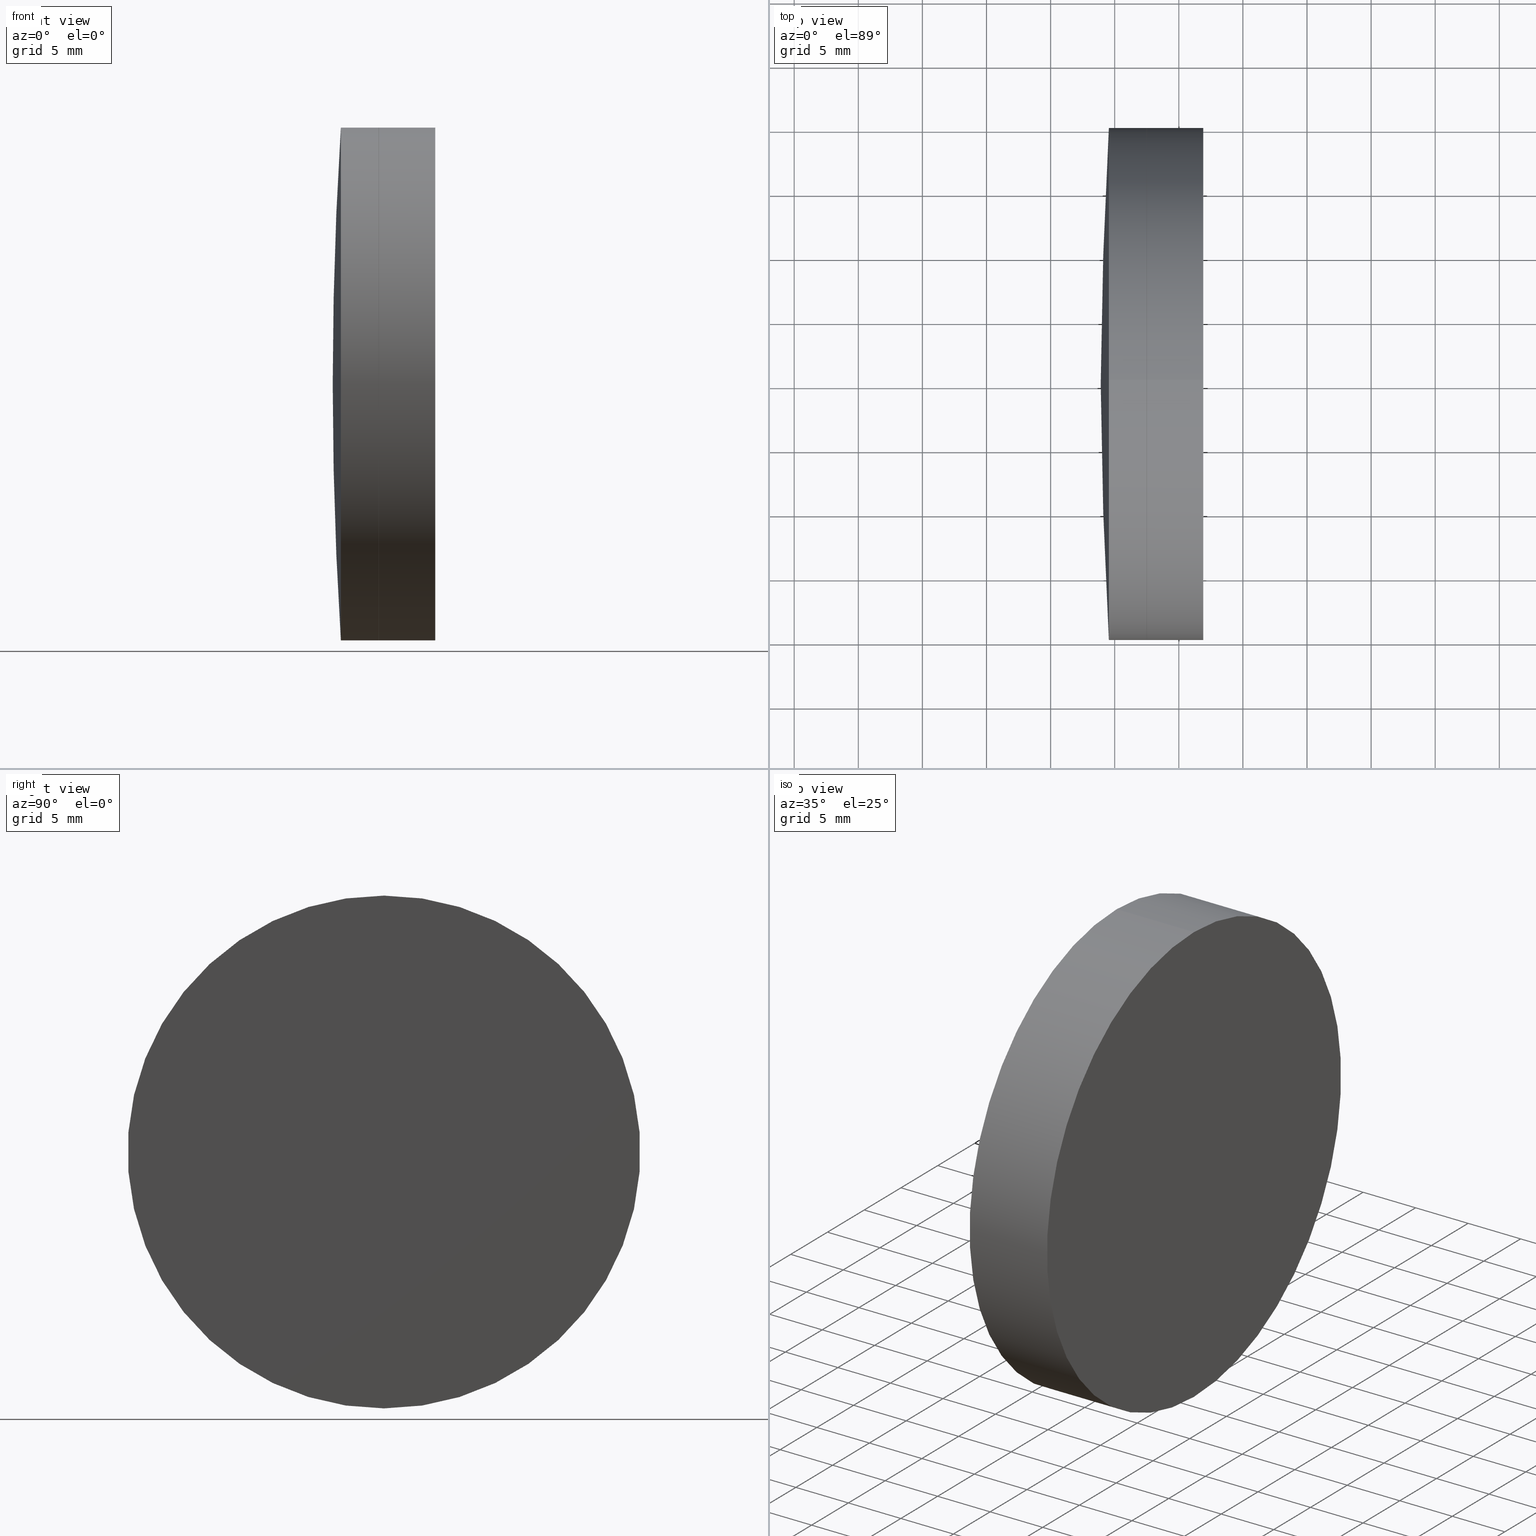
[diagram: canonical four-view strip — front | top / right | iso, engineering-drawing reading convention]
A machine part, canonical four-view strip (front | top / right | iso — engineering-drawing reading convention). The complete STEP part file that produces these views, byte-faithful:
ISO-10303-21;
HEADER;
FILE_DESCRIPTION (( 'STEP AP214' ),
    '1' );
FILE_NAME ('145078.STEP',
    '2019-05-16T02:05:39',
    ( 'user' ),
    ( '΢���й�' ),
    'SwSTEP 2.0',
    'SolidWorks 2016',
    '' );
FILE_SCHEMA (( 'AUTOMOTIVE_DESIGN' ));
ENDSEC;

DATA;
#1 = CIRCLE ( 'NONE', #215, 506.6900000000000000 ) ;
#2 = LINE ( 'NONE', #231, #249 ) ;
#3 = EDGE_CURVE ( 'NONE', #164, #226, #185, .T. ) ;
#4 = PRESENTATION_STYLE_ASSIGNMENT (( #19 ) ) ;
#5 = PRODUCT ( '145078', '145078', '', ( #258 ) ) ;
#6 = FILL_AREA_STYLE ('',( #58 ) ) ;
#7 =( GEOMETRIC_REPRESENTATION_CONTEXT ( 3 ) GLOBAL_UNCERTAINTY_ASSIGNED_CONTEXT ( ( #235 ) ) GLOBAL_UNIT_ASSIGNED_CONTEXT ( ( #176, #208, #107 ) ) REPRESENTATION_CONTEXT ( 'NONE', 'WORKASPACE' ) );
#8 =( NAMED_UNIT ( * ) PLANE_ANGLE_UNIT ( ) SI_UNIT ( $, .RADIAN. ) );
#9 = CLOSED_SHELL ( 'NONE', ( #182, #15, #136, #211, #287 ) ) ;
#10 = VECTOR ( 'NONE', #281, 1000.000000000000000 ) ;
#11 = DIRECTION ( 'NONE',  ( -1.000000000000000000, -0.0000000000000000000, -0.0000000000000000000 ) ) ;
#12 = CIRCLE ( 'NONE', #229, 20.00000000000019500 ) ;
#13 = DIRECTION ( 'NONE',  ( 0.0000000000000000000, 0.0000000000000000000, 1.000000000000000000 ) ) ;
#14 = AXIS2_PLACEMENT_3D ( 'NONE', #284, #108, #310 ) ;
#15 = ADVANCED_FACE ( 'NONE', ( #210 ), #253, .F. ) ;
#16 = ORIENTED_EDGE ( 'NONE', *, *, #130, .F. ) ;
#17 = SURFACE_SIDE_STYLE ('',( #62 ) ) ;
#18 = CIRCLE ( 'NONE', #55, 20.00000000000019500 ) ;
#19 = SURFACE_STYLE_USAGE ( .BOTH. , #34 ) ;
#20 = DIRECTION ( 'NONE',  ( 0.0000000000000000000, -1.000000000000000000, 0.0000000000000000000 ) ) ;
#21 = DIRECTION ( 'NONE',  ( 0.0000000000000000000, 0.0000000000000000000, 1.000000000000000000 ) ) ;
#22 = ORIENTED_EDGE ( 'NONE', *, *, #88, .T. ) ;
#23 = DIRECTION ( 'NONE',  ( -1.000000000000000000, -0.0000000000000000000, -0.0000000000000000000 ) ) ;
#24 = DIRECTION ( 'NONE',  ( 0.0000000000000000000, 0.0000000000000000000, 1.000000000000000000 ) ) ;
#25 = AXIS2_PLACEMENT_3D ( 'NONE', #239, #57, #81 ) ;
#26 = DIRECTION ( 'NONE',  ( -0.0000000000000000000, 1.000000000000000000, 1.224646799147353200E-016 ) ) ;
#27 = ORIENTED_EDGE ( 'NONE', *, *, #268, .F. ) ;
#28 = EDGE_CURVE ( 'NONE', #226, #96, #271, .T. ) ;
#29 = AXIS2_PLACEMENT_3D ( 'NONE', #260, #189, #155 ) ;
#30 = ORIENTED_EDGE ( 'NONE', *, *, #126, .T. ) ;
#31 = CYLINDRICAL_SURFACE ( 'NONE', #77, 20.00000000000019500 ) ;
#32 = AXIS2_PLACEMENT_3D ( 'NONE', #109, #234, #115 ) ;
#33 = ADVANCED_BREP_SHAPE_REPRESENTATION ( '145078', ( #188, #197, #314 ), #102 ) ;
#34 = SURFACE_SIDE_STYLE ('',( #194 ) ) ;
#35 = EDGE_LOOP ( 'NONE', ( #16, #321, #247, #146 ) ) ;
#36 = ORIENTED_EDGE ( 'NONE', *, *, #268, .T. ) ;
#37 = SPHERICAL_SURFACE ( 'NONE', #97, 506.6900000000000000 ) ;
#38 = ORIENTED_EDGE ( 'NONE', *, *, #94, .F. ) ;
#39 = ADVANCED_FACE ( 'NONE', ( #283 ), #193, .T. ) ;
#40 = APPLICATION_PROTOCOL_DEFINITION ( 'draft international standard', 'automotive_design', 1998, #54 ) ;
#41 = SURFACE_STYLE_USAGE ( .BOTH. , #17 ) ;
#42 = CIRCLE ( 'NONE', #104, 20.00000000000019500 ) ;
#43 =( GEOMETRIC_REPRESENTATION_CONTEXT ( 3 ) GLOBAL_UNCERTAINTY_ASSIGNED_CONTEXT ( ( #144 ) ) GLOBAL_UNIT_ASSIGNED_CONTEXT ( ( #228, #8, #279 ) ) REPRESENTATION_CONTEXT ( 'NONE', 'WORKASPACE' ) );
#44 = DIRECTION ( 'NONE',  ( 0.0000000000000000000, 1.000000000000000000, 0.0000000000000000000 ) ) ;
#45 = EDGE_LOOP ( 'NONE', ( #245, #119, #190 ) ) ;
#46 = EDGE_CURVE ( 'NONE', #204, #99, #320, .T. ) ;
#47 = EDGE_LOOP ( 'NONE', ( #124, #30, #223 ) ) ;
#48 = CIRCLE ( 'NONE', #300, 506.6900000000000000 ) ;
#49 = DIRECTION ( 'NONE',  ( 0.0000000000000000000, 0.0000000000000000000, 1.000000000000000000 ) ) ;
#50 = EDGE_LOOP ( 'NONE', ( #159, #269, #241 ) ) ;
#51 = DIRECTION ( 'NONE',  ( -0.0000000000000000000, 1.000000000000000000, 1.224646799147353200E-016 ) ) ;
#52 = EDGE_CURVE ( 'NONE', #96, #226, #56, .T. ) ;
#53 = CARTESIAN_POINT ( 'NONE',  ( -0.5519199926577972300, 0.0000000000000000000, 20.00000000000019500 ) ) ;
#54 = APPLICATION_CONTEXT ( 'automotive_design' ) ;
#55 = AXIS2_PLACEMENT_3D ( 'NONE', #203, #230, #74 ) ;
#56 = CIRCLE ( 'NONE', #318, 19.99999999999986100 ) ;
#57 = DIRECTION ( 'NONE',  ( -1.000000000000000000, -0.0000000000000000000, -0.0000000000000000000 ) ) ;
#58 = FILL_AREA_STYLE_COLOUR ( '', #202 ) ;
#59 = DIRECTION ( 'NONE',  ( -1.000000000000000000, -0.0000000000000000000, -0.0000000000000000000 ) ) ;
#60 = CARTESIAN_POINT ( 'NONE',  ( 657.5142120742816600, 0.0000000000000000000, 19.99999999999986500 ) ) ;
#61 =( NAMED_UNIT ( * ) SI_UNIT ( $, .STERADIAN. ) SOLID_ANGLE_UNIT ( ) );
#62 = SURFACE_STYLE_FILL_AREA ( #117 ) ;
#63 = EDGE_CURVE ( 'NONE', #99, #96, #2, .T. ) ;
#64 = PRODUCT_DEFINITION_SHAPE ( 'NONE', 'NONE',  #156 ) ;
#65 = AXIS2_PLACEMENT_3D ( 'NONE', #80, #178, #13 ) ;
#66 = EDGE_LOOP ( 'NONE', ( #165, #168, #157, #201 ) ) ;
#67 = VERTEX_POINT ( 'NONE', #315 ) ;
#68 = ORIENTED_EDGE ( 'NONE', *, *, #52, .F. ) ;
#69 = FACE_OUTER_BOUND ( 'NONE', #266, .T. ) ;
#70 = STYLED_ITEM ( 'NONE', ( #4 ), #33 ) ;
#71 = SPHERICAL_SURFACE ( 'NONE', #29, 506.6900000000000000 ) ;
#72 = ORIENTED_EDGE ( 'NONE', *, *, #52, .T. ) ;
#73 = CIRCLE ( 'NONE', #65, 19.99999999999986500 ) ;
#74 = DIRECTION ( 'NONE',  ( 0.0000000000000000000, 0.0000000000000000000, 1.000000000000000000 ) ) ;
#75 = CARTESIAN_POINT ( 'NONE',  ( 654.5442827078192100, 0.0000000000000000000, 0.0000000000000000000 ) ) ;
#76 = CARTESIAN_POINT ( 'NONE',  ( 0.0000000000000000000, 0.0000000000000000000, 0.0000000000000000000 ) ) ;
#77 = AXIS2_PLACEMENT_3D ( 'NONE', #110, #154, #316 ) ;
#78 = FACE_OUTER_BOUND ( 'NONE', #50, .T. ) ;
#79 = ORIENTED_EDGE ( 'NONE', *, *, #94, .T. ) ;
#80 = CARTESIAN_POINT ( 'NONE',  ( 657.5142120742816600, 0.0000000000000000000, 0.0000000000000000000 ) ) ;
#81 = DIRECTION ( 'NONE',  ( 0.0000000000000000000, 0.0000000000000000000, 1.000000000000000000 ) ) ;
#82 = ADVANCED_FACE ( 'NONE', ( #312 ), #100, .T. ) ;
#83 = UNCERTAINTY_MEASURE_WITH_UNIT (LENGTH_MEASURE( 1.000000000000000100E-005 ), #277, 'distance_accuracy_value', 'NONE');
#84 = FILL_AREA_STYLE_COLOUR ( '', #225 ) ;
#85 = DIRECTION ( 'NONE',  ( 0.0000000000000000000, 0.0000000000000000000, 1.000000000000000000 ) ) ;
#86 = CARTESIAN_POINT ( 'NONE',  ( 151.2190846041469300, 0.0000000000000000000, -1.344597157034381000E-013 ) ) ;
#87 = AXIS2_PLACEMENT_3D ( 'NONE', #303, #129, #103 ) ;
#88 = EDGE_CURVE ( 'NONE', #96, #153, #171, .T. ) ;
#89 = DIRECTION ( 'NONE',  ( 0.0000000000000000000, 0.0000000000000000000, -1.000000000000000000 ) ) ;
#90 = CARTESIAN_POINT ( 'NONE',  ( 657.5142120742816600, 2.449293598294727800E-015, -20.00000000000030900 ) ) ;
#91 = DIRECTION ( 'NONE',  ( -1.000000000000000000, -0.0000000000000000000, -0.0000000000000000000 ) ) ;
#92 = DIRECTION ( 'NONE',  ( -1.000000000000000000, -0.0000000000000000000, -0.0000000000000000000 ) ) ;
#93 = PRODUCT_DEFINITION_CONTEXT ( 'detailed design', #305, 'design' ) ;
#94 = EDGE_CURVE ( 'NONE', #226, #153, #123, .T. ) ;
#95 = STYLED_ITEM ( 'NONE', ( #169 ), #188 ) ;
#96 = VERTEX_POINT ( 'NONE', #307 ) ;
#97 = AXIS2_PLACEMENT_3D ( 'NONE', #177, #44, #21 ) ;
#98 = FILL_AREA_STYLE ('',( #139 ) ) ;
#99 = VERTEX_POINT ( 'NONE', #265 ) ;
#100 = CYLINDRICAL_SURFACE ( 'NONE', #32, 19.99999999999986500 ) ;
#101 = CARTESIAN_POINT ( 'NONE',  ( -0.5519199926577972300, 0.0000000000000000000, 0.0000000000000000000 ) ) ;
#102 =( GEOMETRIC_REPRESENTATION_CONTEXT ( 3 ) GLOBAL_UNCERTAINTY_ASSIGNED_CONTEXT ( ( #83 ) ) GLOBAL_UNIT_ASSIGNED_CONTEXT ( ( #277, #181, #289 ) ) REPRESENTATION_CONTEXT ( 'NONE', 'WORKASPACE' ) );
#103 = DIRECTION ( 'NONE',  ( -0.0000000000000000000, 0.0000000000000000000, 1.000000000000000000 ) ) ;
#104 = AXIS2_PLACEMENT_3D ( 'NONE', #219, #92, #301 ) ;
#105 = EDGE_LOOP ( 'NONE', ( #128, #22, #38 ) ) ;
#106 = CARTESIAN_POINT ( 'NONE',  ( 151.2190846041469300, 0.0000000000000000000, -1.344597157034381000E-013 ) ) ;
#107 =( NAMED_UNIT ( * ) SI_UNIT ( $, .STERADIAN. ) SOLID_ANGLE_UNIT ( ) );
#108 = DIRECTION ( 'NONE',  ( 0.0000000000000000000, 1.000000000000000000, 0.0000000000000000000 ) ) ;
#109 = CARTESIAN_POINT ( 'NONE',  ( 124.5233095260452400, 0.0000000000000000000, 0.0000000000000000000 ) ) ;
#110 = CARTESIAN_POINT ( 'NONE',  ( -0.5519199926577972300, 0.0000000000000000000, 0.0000000000000000000 ) ) ;
#111 = ADVANCED_FACE ( 'NONE', ( #206 ), #218, .T. ) ;
#112 = DIRECTION ( 'NONE',  ( -1.000000000000000000, -0.0000000000000000000, -0.0000000000000000000 ) ) ;
#113 = CARTESIAN_POINT ( 'NONE',  ( 661.9090846041468700, 0.0000000000000000000, 20.00000000000019500 ) ) ;
#114 = PRESENTATION_LAYER_ASSIGNMENT (  '', '', ( #125 ) ) ;
#115 = DIRECTION ( 'NONE',  ( 0.0000000000000000000, 0.0000000000000000000, 1.000000000000000000 ) ) ;
#116 = LINE ( 'NONE', #53, #275 ) ;
#117 = FILL_AREA_STYLE ('',( #84 ) ) ;
#118 = CARTESIAN_POINT ( 'NONE',  ( 124.5233095260452400, 0.0000000000000000000, 0.0000000000000000000 ) ) ;
#119 = ORIENTED_EDGE ( 'NONE', *, *, #205, .T. ) ;
#120 = EDGE_CURVE ( 'NONE', #184, #290, #116, .T. ) ;
#121 = AXIS2_PLACEMENT_3D ( 'NONE', #118, #59, #175 ) ;
#122 = FACE_OUTER_BOUND ( 'NONE', #35, .T. ) ;
#123 = CIRCLE ( 'NONE', #299, 315.1800000000000600 ) ;
#124 = ORIENTED_EDGE ( 'NONE', *, *, #46, .F. ) ;
#125 = STYLED_ITEM ( 'NONE', ( #296 ), #197 ) ;
#126 = EDGE_CURVE ( 'NONE', #204, #164, #48, .T. ) ;
#127 = PRODUCT_RELATED_PRODUCT_CATEGORY ( 'part', '', ( #5 ) ) ;
#128 = ORIENTED_EDGE ( 'NONE', *, *, #28, .T. ) ;
#129 = DIRECTION ( 'NONE',  ( -1.000000000000000000, 0.0000000000000000000, -0.0000000000000000000 ) ) ;
#130 = EDGE_CURVE ( 'NONE', #67, #198, #291, .T. ) ;
#131 = DIRECTION ( 'NONE',  ( 0.0000000000000000000, 0.0000000000000000000, -1.000000000000000000 ) ) ;
#132 = CARTESIAN_POINT ( 'NONE',  ( -0.5519199926577972300, 2.449293598294730200E-015, -20.00000000000019500 ) ) ;
#133 = DIRECTION ( 'NONE',  ( 1.000000000000000000, 0.0000000000000000000, 0.0000000000000000000 ) ) ;
#134 = ORIENTED_EDGE ( 'NONE', *, *, #174, .F. ) ;
#135 = DIRECTION ( 'NONE',  ( 0.0000000000000000000, 1.000000000000000000, 0.0000000000000000000 ) ) ;
#136 = ADVANCED_FACE ( 'NONE', ( #78 ), #37, .F. ) ;
#137 = SURFACE_SIDE_STYLE ('',( #224 ) ) ;
#138 = CLOSED_SHELL ( 'NONE', ( #309, #82, #237, #39, #111, #259 ) ) ;
#139 = FILL_AREA_STYLE_COLOUR ( '', #149 ) ;
#140 = DIRECTION ( 'NONE',  ( 0.0000000000000000000, 0.0000000000000000000, 1.000000000000000000 ) ) ;
#141 = CARTESIAN_POINT ( 'NONE',  ( 657.9090846041468700, 0.0000000000000000000, -1.034339013704394600E-013 ) ) ;
#142 = AXIS2_PLACEMENT_3D ( 'NONE', #214, #236, #240 ) ;
#143 = FACE_OUTER_BOUND ( 'NONE', #195, .T. ) ;
#144 = UNCERTAINTY_MEASURE_WITH_UNIT (LENGTH_MEASURE( 1.000000000000000100E-005 ), #228, 'distance_accuracy_value', 'NONE');
#145 = CYLINDRICAL_SURFACE ( 'NONE', #238, 20.00000000000019500 ) ;
#146 = ORIENTED_EDGE ( 'NONE', *, *, #167, .F. ) ;
#147 = EDGE_CURVE ( 'NONE', #99, #164, #248, .T. ) ;
#148 = PRESENTATION_LAYER_ASSIGNMENT (  '', '', ( #70 ) ) ;
#149 = COLOUR_RGB ( '',1.000000000000000000, 1.000000000000000000, 1.000000000000000000 ) ;
#150 = EDGE_LOOP ( 'NONE', ( #27, #304 ) ) ;
#151 = CARTESIAN_POINT ( 'NONE',  ( 661.9090846041468700, 0.0000000000000000000, 0.0000000000000000000 ) ) ;
#152 = SHAPE_DEFINITION_REPRESENTATION ( #64, #33 ) ;
#153 = VERTEX_POINT ( 'NONE', #209 ) ;
#154 = DIRECTION ( 'NONE',  ( -1.000000000000000000, -0.0000000000000000000, -0.0000000000000000000 ) ) ;
#155 = DIRECTION ( 'NONE',  ( 0.0000000000000000000, 0.0000000000000000000, 1.000000000000000000 ) ) ;
#156 = PRODUCT_DEFINITION ( 'δ֪', '', #295, #93 ) ;
#157 = ORIENTED_EDGE ( 'NONE', *, *, #28, .F. ) ;
#158 = CARTESIAN_POINT ( 'NONE',  ( 657.5142120742816600, 0.0000000000000000000, 0.0000000000000000000 ) ) ;
#159 = ORIENTED_EDGE ( 'NONE', *, *, #205, .F. ) ;
#160 = CARTESIAN_POINT ( 'NONE',  ( 657.5142120742816600, 0.0000000000000000000, 0.0000000000000000000 ) ) ;
#161 = AXIS2_PLACEMENT_3D ( 'NONE', #86, #135, #263 ) ;
#162 = PRESENTATION_LAYER_ASSIGNMENT (  '', '', ( #95 ) ) ;
#163 = ORIENTED_EDGE ( 'NONE', *, *, #88, .F. ) ;
#164 = VERTEX_POINT ( 'NONE', #60 ) ;
#165 = ORIENTED_EDGE ( 'NONE', *, *, #174, .T. ) ;
#166 = ORIENTED_EDGE ( 'NONE', *, *, #147, .T. ) ;
#167 = EDGE_CURVE ( 'NONE', #198, #290, #42, .T. ) ;
#168 = ORIENTED_EDGE ( 'NONE', *, *, #63, .T. ) ;
#169 = PRESENTATION_STYLE_ASSIGNMENT (( #285 ) ) ;
#170 = MECHANICAL_DESIGN_GEOMETRIC_PRESENTATION_REPRESENTATION (  '', ( #125 ), #43 ) ;
#171 = CIRCLE ( 'NONE', #252, 315.1800000000000600 ) ;
#172 = DIRECTION ( 'NONE',  ( 0.0000000000000000000, 0.0000000000000000000, 1.000000000000000000 ) ) ;
#173 = ORIENTED_EDGE ( 'NONE', *, *, #3, .T. ) ;
#174 = EDGE_CURVE ( 'NONE', #164, #99, #73, .T. ) ;
#175 = DIRECTION ( 'NONE',  ( 0.0000000000000000000, 0.0000000000000000000, 1.000000000000000000 ) ) ;
#176 =( LENGTH_UNIT ( ) NAMED_UNIT ( * ) SI_UNIT ( .MILLI., .METRE. ) );
#177 = CARTESIAN_POINT ( 'NONE',  ( 151.2190846041469300, 0.0000000000000000000, -1.344597157034381000E-013 ) ) ;
#178 = DIRECTION ( 'NONE',  ( -1.000000000000000000, -0.0000000000000000000, -0.0000000000000000000 ) ) ;
#179 = MECHANICAL_DESIGN_GEOMETRIC_PRESENTATION_REPRESENTATION (  '', ( #95 ), #246 ) ;
#180 = DIRECTION ( 'NONE',  ( 0.0000000000000000000, -1.224646799147353200E-016, 1.000000000000000000 ) ) ;
#181 =( NAMED_UNIT ( * ) PLANE_ANGLE_UNIT ( ) SI_UNIT ( $, .RADIAN. ) );
#182 = ADVANCED_FACE ( 'NONE', ( #69 ), #31, .T. ) ;
#183 = DIRECTION ( 'NONE',  ( -1.000000000000000000, -0.0000000000000000000, -0.0000000000000000000 ) ) ;
#184 = VERTEX_POINT ( 'NONE', #113 ) ;
#185 = LINE ( 'NONE', #261, #221 ) ;
#186 = CARTESIAN_POINT ( 'NONE',  ( 151.2190846041469300, 0.0000000000000000000, -1.344597157034381000E-013 ) ) ;
#187 = DIRECTION ( 'NONE',  ( -0.0000000000000000000, 1.000000000000000000, 1.224646799147353200E-016 ) ) ;
#188 = MANIFOLD_SOLID_BREP ( '��ת1', #138 ) ;
#189 = DIRECTION ( 'NONE',  ( 0.0000000000000000000, 1.000000000000000000, 0.0000000000000000000 ) ) ;
#190 = ORIENTED_EDGE ( 'NONE', *, *, #167, .T. ) ;
#191 = DIRECTION ( 'NONE',  ( -1.000000000000000000, -0.0000000000000000000, -0.0000000000000000000 ) ) ;
#192 = CARTESIAN_POINT ( 'NONE',  ( 151.2190846041469300, 0.0000000000000000000, -1.344597157034381000E-013 ) ) ;
#193 = SPHERICAL_SURFACE ( 'NONE', #14, 315.1800000000000600 ) ;
#194 = SURFACE_STYLE_FILL_AREA ( #6 ) ;
#195 = EDGE_LOOP ( 'NONE', ( #274, #217, #134 ) ) ;
#196 = EDGE_CURVE ( 'NONE', #290, #198, #12, .T. ) ;
#197 = MANIFOLD_SOLID_BREP ( '��ת3', #9 ) ;
#198 = VERTEX_POINT ( 'NONE', #90 ) ;
#199 = AXIS2_PLACEMENT_3D ( 'NONE', #151, #11, #172 ) ;
#200 = FACE_OUTER_BOUND ( 'NONE', #105, .T. ) ;
#201 = ORIENTED_EDGE ( 'NONE', *, *, #3, .F. ) ;
#202 = COLOUR_RGB ( '',1.000000000000000000, 1.000000000000000000, 1.000000000000000000 ) ;
#203 = CARTESIAN_POINT ( 'NONE',  ( 661.9090846041468700, 0.0000000000000000000, 0.0000000000000000000 ) ) ;
#204 = VERTEX_POINT ( 'NONE', #292 ) ;
#205 = EDGE_CURVE ( 'NONE', #251, #198, #1, .T. ) ;
#206 = FACE_OUTER_BOUND ( 'NONE', #294, .T. ) ;
#207 = CIRCLE ( 'NONE', #199, 20.00000000000019500 ) ;
#208 =( NAMED_UNIT ( * ) PLANE_ANGLE_UNIT ( ) SI_UNIT ( $, .RADIAN. ) );
#209 = CARTESIAN_POINT ( 'NONE',  ( 653.9090846041468700, 0.0000000000000000000, -1.165465373686866100E-013 ) ) ;
#210 = FACE_OUTER_BOUND ( 'NONE', #45, .T. ) ;
#211 = ADVANCED_FACE ( 'NONE', ( #122 ), #145, .T. ) ;
#212 = FACE_OUTER_BOUND ( 'NONE', #47, .T. ) ;
#213 = DIRECTION ( 'NONE',  ( -1.000000000000000000, -0.0000000000000000000, -0.0000000000000000000 ) ) ;
#214 = CARTESIAN_POINT ( 'NONE',  ( 151.2190846041469300, 0.0000000000000000000, -1.344597157034381000E-013 ) ) ;
#215 = AXIS2_PLACEMENT_3D ( 'NONE', #192, #26, #276 ) ;
#216 = CARTESIAN_POINT ( 'NONE',  ( 969.0890846041469300, 0.0000000000000000000, -1.358457462764497500E-013 ) ) ;
#217 = ORIENTED_EDGE ( 'NONE', *, *, #46, .T. ) ;
#218 = CYLINDRICAL_SURFACE ( 'NONE', #121, 19.99999999999986500 ) ;
#219 = CARTESIAN_POINT ( 'NONE',  ( 657.5142120742816600, 0.0000000000000000000, 0.0000000000000000000 ) ) ;
#220 = SPHERICAL_SURFACE ( 'NONE', #306, 506.6900000000000000 ) ;
#221 = VECTOR ( 'NONE', #112, 1000.000000000000000 ) ;
#222 = AXIS2_PLACEMENT_3D ( 'NONE', #257, #262, #311 ) ;
#223 = ORIENTED_EDGE ( 'NONE', *, *, #147, .F. ) ;
#224 = SURFACE_STYLE_FILL_AREA ( #98 ) ;
#225 = COLOUR_RGB ( '',1.000000000000000000, 1.000000000000000000, 1.000000000000000000 ) ;
#226 = VERTEX_POINT ( 'NONE', #308 ) ;
#227 = UNCERTAINTY_MEASURE_WITH_UNIT (LENGTH_MEASURE( 1.000000000000000100E-005 ), #288, 'distance_accuracy_value', 'NONE');
#228 =( LENGTH_UNIT ( ) NAMED_UNIT ( * ) SI_UNIT ( .MILLI., .METRE. ) );
#229 = AXIS2_PLACEMENT_3D ( 'NONE', #158, #23, #267 ) ;
#230 = DIRECTION ( 'NONE',  ( -1.000000000000000000, -0.0000000000000000000, -0.0000000000000000000 ) ) ;
#231 = CARTESIAN_POINT ( 'NONE',  ( 124.5233095260452400, 2.449293598294689900E-015, -19.99999999999986500 ) ) ;
#232 = APPLICATION_PROTOCOL_DEFINITION ( 'draft international standard', 'automotive_design', 1998, #305 ) ;
#233 = ORIENTED_EDGE ( 'NONE', *, *, #196, .F. ) ;
#234 = DIRECTION ( 'NONE',  ( -1.000000000000000000, -0.0000000000000000000, -0.0000000000000000000 ) ) ;
#235 = UNCERTAINTY_MEASURE_WITH_UNIT (LENGTH_MEASURE( 1.000000000000000100E-005 ), #176, 'distance_accuracy_value', 'NONE');
#236 = DIRECTION ( 'NONE',  ( 0.0000000000000000000, -1.000000000000000000, 0.0000000000000000000 ) ) ;
#237 = ADVANCED_FACE ( 'NONE', ( #200 ), #319, .T. ) ;
#238 = AXIS2_PLACEMENT_3D ( 'NONE', #101, #91, #49 ) ;
#239 = CARTESIAN_POINT ( 'NONE',  ( 654.5442827078192100, 0.0000000000000000000, 0.0000000000000000000 ) ) ;
#240 = DIRECTION ( 'NONE',  ( 0.0000000000000000000, 0.0000000000000000000, -1.000000000000000000 ) ) ;
#241 = ORIENTED_EDGE ( 'NONE', *, *, #196, .T. ) ;
#242 = CARTESIAN_POINT ( 'NONE',  ( 151.2190846041469300, 0.0000000000000000000, -1.344597157034381000E-013 ) ) ;
#243 = DIRECTION ( 'NONE',  ( 0.0000000000000000000, -1.000000000000000000, 0.0000000000000000000 ) ) ;
#244 =( NAMED_UNIT ( * ) PLANE_ANGLE_UNIT ( ) SI_UNIT ( $, .RADIAN. ) );
#245 = ORIENTED_EDGE ( 'NONE', *, *, #293, .F. ) ;
#246 =( GEOMETRIC_REPRESENTATION_CONTEXT ( 3 ) GLOBAL_UNCERTAINTY_ASSIGNED_CONTEXT ( ( #227 ) ) GLOBAL_UNIT_ASSIGNED_CONTEXT ( ( #288, #244, #61 ) ) REPRESENTATION_CONTEXT ( 'NONE', 'WORKASPACE' ) );
#247 = ORIENTED_EDGE ( 'NONE', *, *, #120, .T. ) ;
#248 = CIRCLE ( 'NONE', #250, 19.99999999999986500 ) ;
#249 = VECTOR ( 'NONE', #213, 1000.000000000000000 ) ;
#250 = AXIS2_PLACEMENT_3D ( 'NONE', #160, #191, #24 ) ;
#251 = VERTEX_POINT ( 'NONE', #141 ) ;
#252 = AXIS2_PLACEMENT_3D ( 'NONE', #264, #187, #256 ) ;
#253 = SPHERICAL_SURFACE ( 'NONE', #161, 506.6900000000000000 ) ;
#254 = CARTESIAN_POINT ( 'NONE',  ( 657.5142120742816600, 0.0000000000000000000, 20.00000000000017400 ) ) ;
#255 = DIRECTION ( 'NONE',  ( 0.0000000000000000000, 1.000000000000000000, 0.0000000000000000000 ) ) ;
#256 = DIRECTION ( 'NONE',  ( 0.0000000000000000000, -1.224646799147353200E-016, 1.000000000000000000 ) ) ;
#257 = CARTESIAN_POINT ( 'NONE',  ( 969.0890846041469300, 0.0000000000000000000, -1.358457462764497500E-013 ) ) ;
#258 = PRODUCT_CONTEXT ( 'NONE', #54, 'mechanical' ) ;
#259 = ADVANCED_FACE ( 'NONE', ( #212 ), #71, .T. ) ;
#260 = CARTESIAN_POINT ( 'NONE',  ( 151.2190846041469300, 0.0000000000000000000, -1.344597157034381000E-013 ) ) ;
#261 = CARTESIAN_POINT ( 'NONE',  ( 124.5233095260452400, 0.0000000000000000000, 19.99999999999986500 ) ) ;
#262 = DIRECTION ( 'NONE',  ( 0.0000000000000000000, 1.000000000000000000, 0.0000000000000000000 ) ) ;
#263 = DIRECTION ( 'NONE',  ( 0.0000000000000000000, 0.0000000000000000000, 1.000000000000000000 ) ) ;
#264 = CARTESIAN_POINT ( 'NONE',  ( 969.0890846041469300, 0.0000000000000000000, -1.358457462764497500E-013 ) ) ;
#265 = CARTESIAN_POINT ( 'NONE',  ( 657.5142120742816600, 2.449293598294689900E-015, -19.99999999999986500 ) ) ;
#266 = EDGE_LOOP ( 'NONE', ( #36, #297, #233, #317 ) ) ;
#267 = DIRECTION ( 'NONE',  ( 0.0000000000000000000, 0.0000000000000000000, 1.000000000000000000 ) ) ;
#268 = EDGE_CURVE ( 'NONE', #184, #67, #18, .T. ) ;
#269 = ORIENTED_EDGE ( 'NONE', *, *, #293, .T. ) ;
#270 = EDGE_LOOP ( 'NONE', ( #163, #72, #79 ) ) ;
#271 = CIRCLE ( 'NONE', #25, 19.99999999999986100 ) ;
#272 = EDGE_CURVE ( 'NONE', #67, #184, #207, .T. ) ;
#273 = FACE_OUTER_BOUND ( 'NONE', #150, .T. ) ;
#274 = ORIENTED_EDGE ( 'NONE', *, *, #126, .F. ) ;
#275 = VECTOR ( 'NONE', #183, 1000.000000000000000 ) ;
#276 = DIRECTION ( 'NONE',  ( 0.0000000000000000000, -1.224646799147353200E-016, 1.000000000000000000 ) ) ;
#277 =( LENGTH_UNIT ( ) NAMED_UNIT ( * ) SI_UNIT ( .MILLI., .METRE. ) );
#278 = CIRCLE ( 'NONE', #142, 506.6900000000000000 ) ;
#279 =( NAMED_UNIT ( * ) SI_UNIT ( $, .STERADIAN. ) SOLID_ANGLE_UNIT ( ) );
#280 = AXIS2_PLACEMENT_3D ( 'NONE', #242, #51, #180 ) ;
#281 = DIRECTION ( 'NONE',  ( -1.000000000000000000, -0.0000000000000000000, -0.0000000000000000000 ) ) ;
#282 = DIRECTION ( 'NONE',  ( 0.0000000000000000000, 0.0000000000000000000, 1.000000000000000000 ) ) ;
#283 = FACE_OUTER_BOUND ( 'NONE', #270, .T. ) ;
#284 = CARTESIAN_POINT ( 'NONE',  ( 969.0890846041469300, 0.0000000000000000000, -1.358457462764497500E-013 ) ) ;
#285 = SURFACE_STYLE_USAGE ( .BOTH. , #137 ) ;
#286 = MECHANICAL_DESIGN_GEOMETRIC_PRESENTATION_REPRESENTATION (  '', ( #70 ), #7 ) ;
#287 = ADVANCED_FACE ( 'NONE', ( #273 ), #302, .F. ) ;
#288 =( LENGTH_UNIT ( ) NAMED_UNIT ( * ) SI_UNIT ( .MILLI., .METRE. ) );
#289 =( NAMED_UNIT ( * ) SI_UNIT ( $, .STERADIAN. ) SOLID_ANGLE_UNIT ( ) );
#290 = VERTEX_POINT ( 'NONE', #254 ) ;
#291 = LINE ( 'NONE', #132, #10 ) ;
#292 = CARTESIAN_POINT ( 'NONE',  ( 657.9090846041468700, 0.0000000000000000000, -1.034339013704394600E-013 ) ) ;
#293 = EDGE_CURVE ( 'NONE', #251, #290, #278, .T. ) ;
#294 = EDGE_LOOP ( 'NONE', ( #298, #166, #173, #68 ) ) ;
#295 = PRODUCT_DEFINITION_FORMATION_WITH_SPECIFIED_SOURCE ( '�κ�', '', #5, .NOT_KNOWN. ) ;
#296 = PRESENTATION_STYLE_ASSIGNMENT (( #41 ) ) ;
#297 = ORIENTED_EDGE ( 'NONE', *, *, #130, .T. ) ;
#298 = ORIENTED_EDGE ( 'NONE', *, *, #63, .F. ) ;
#299 = AXIS2_PLACEMENT_3D ( 'NONE', #216, #243, #89 ) ;
#300 = AXIS2_PLACEMENT_3D ( 'NONE', #106, #20, #131 ) ;
#301 = DIRECTION ( 'NONE',  ( 0.0000000000000000000, 0.0000000000000000000, 1.000000000000000000 ) ) ;
#302 = PLANE ( 'NONE',  #87 ) ;
#303 = CARTESIAN_POINT ( 'NONE',  ( 661.9090846041468700, 0.0000000000000000000, 0.0000000000000000000 ) ) ;
#304 = ORIENTED_EDGE ( 'NONE', *, *, #272, .F. ) ;
#305 = APPLICATION_CONTEXT ( 'automotive_design' ) ;
#306 = AXIS2_PLACEMENT_3D ( 'NONE', #186, #255, #85 ) ;
#307 = CARTESIAN_POINT ( 'NONE',  ( 654.5442827078192100, 2.449293598294685600E-015, -19.99999999999996400 ) ) ;
#308 = CARTESIAN_POINT ( 'NONE',  ( 654.5442827078192100, 0.0000000000000000000, 19.99999999999982900 ) ) ;
#309 = ADVANCED_FACE ( 'NONE', ( #143 ), #220, .T. ) ;
#310 = DIRECTION ( 'NONE',  ( 0.0000000000000000000, 0.0000000000000000000, 1.000000000000000000 ) ) ;
#311 = DIRECTION ( 'NONE',  ( 0.0000000000000000000, 0.0000000000000000000, 1.000000000000000000 ) ) ;
#312 = FACE_OUTER_BOUND ( 'NONE', #66, .T. ) ;
#313 = DIRECTION ( 'NONE',  ( -1.000000000000000000, -0.0000000000000000000, -0.0000000000000000000 ) ) ;
#314 = AXIS2_PLACEMENT_3D ( 'NONE', #76, #282, #133 ) ;
#315 = CARTESIAN_POINT ( 'NONE',  ( 661.9090846041468700, 2.449293598294730200E-015, -20.00000000000019500 ) ) ;
#316 = DIRECTION ( 'NONE',  ( 0.0000000000000000000, 0.0000000000000000000, 1.000000000000000000 ) ) ;
#317 = ORIENTED_EDGE ( 'NONE', *, *, #120, .F. ) ;
#318 = AXIS2_PLACEMENT_3D ( 'NONE', #75, #313, #140 ) ;
#319 = SPHERICAL_SURFACE ( 'NONE', #222, 315.1800000000000600 ) ;
#320 = CIRCLE ( 'NONE', #280, 506.6900000000000000 ) ;
#321 = ORIENTED_EDGE ( 'NONE', *, *, #272, .T. ) ;
ENDSEC;
END-ISO-10303-21;
